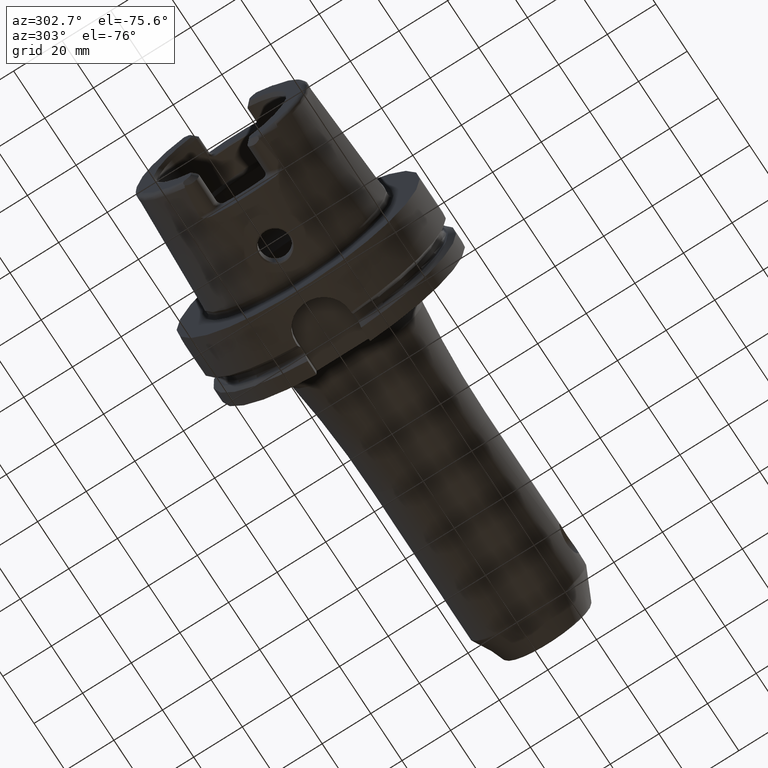
[diagram: clean part render]
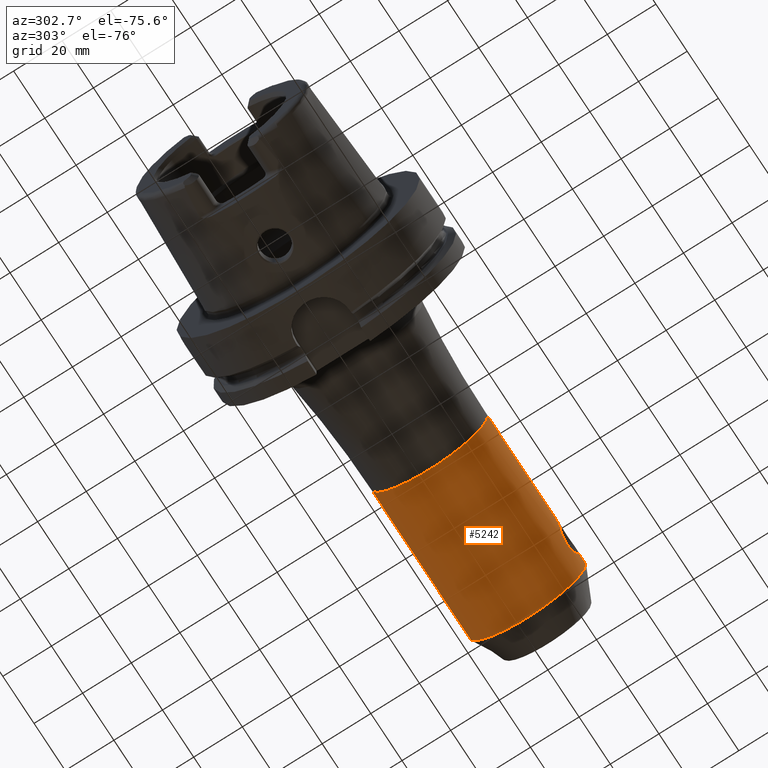
[diagram: same view with one face highlighted and labeled with its STEP entity id]
A machine part, auxiliary view. The second image highlights one B-rep face of the part: STEP entity #5242.
In plain terms, the highlighted cylindrical surface (partial cylindrical patch) has radius 24 mm, axis along (1, 0, 0).
Its self-contained STEP definition (entity closure, byte-faithful):
#1840=CARTESIAN_POINT('',(8.4E1,0.E0,0.E0));
#1841=DIRECTION('',(1.E0,0.E0,0.E0));
#1842=DIRECTION('',(0.E0,-1.E0,0.E0));
#1843=AXIS2_PLACEMENT_3D('',#1840,#1841,#1842);
#1845=DIRECTION('',(-1.E0,0.E0,0.E0));
#1846=VECTOR('',#1845,4.6E1);
#1847=CARTESIAN_POINT('',(1.3E2,-2.4E1,0.E0));
#1848=LINE('',#1847,#1846);
#1849=CARTESIAN_POINT('',(1.42E2,-2.4E1,0.E0));
#1850=CARTESIAN_POINT('',(1.42E2,-2.4E1,-2.303056243480E-1));
#1851=CARTESIAN_POINT('',(1.419737333225E2,-2.399341197275E1,
-6.885303496666E-1));
#1852=CARTESIAN_POINT('',(1.418543459309E2,-2.396384506036E1,
-1.373831486598E0));
#1853=CARTESIAN_POINT('',(1.416570809295E2,-2.391621111192E1,
-2.039513977123E0));
#1854=CARTESIAN_POINT('',(1.413811460476E2,-2.385217337454E1,
-2.684576351589E0));
#1855=CARTESIAN_POINT('',(1.410323527447E2,-2.377555991391E1,
-3.292558739499E0));
#1856=CARTESIAN_POINT('',(1.406100644971E2,-2.368938052900E1,
-3.861886158386E0));
#1857=CARTESIAN_POINT('',(1.401258138418E2,-2.359950761444E1,
-4.375410053870E0));
#1858=CARTESIAN_POINT('',(1.395821202024E2,-2.351013404880E1,
-4.830656948121E0));
#1859=CARTESIAN_POINT('',(1.389924074437E2,-2.342717786415E1,
-5.216300625066E0));
#1860=CARTESIAN_POINT('',(1.383644604091E2,-2.335494506242E1,
-5.529281150146E0));
#1861=CARTESIAN_POINT('',(1.377069920244E2,-2.329735135212E1,
-5.766008671442E0));
#1862=CARTESIAN_POINT('',(1.370331145889E2,-2.325751550948E1,
-5.923901149227E0));
#1863=CARTESIAN_POINT('',(1.363440824489E2,-2.323703795141E1,
-6.003354259553E0));
#1864=CARTESIAN_POINT('',(1.356561575745E2,-2.323703314441E1,
-6.003373076749E0));
#1865=CARTESIAN_POINT('',(1.349670370072E2,-2.325750991375E1,
-5.923922358467E0));
#1866=CARTESIAN_POINT('',(1.342933363411E2,-2.329732649756E1,
-5.766109826059E0));
#1867=CARTESIAN_POINT('',(1.336356276209E2,-2.335493648729E1,
-5.529315378564E0));
#1868=CARTESIAN_POINT('',(1.330079593077E2,-2.342713123226E1,
-5.216510459812E0));
#1869=CARTESIAN_POINT('',(1.324179620641E2,-2.351012048578E1,
-4.830722766926E0));
#1870=CARTESIAN_POINT('',(1.318744301014E2,-2.359946562799E1,
-4.375633971113E0));
#1871=CARTESIAN_POINT('',(1.313900432229E2,-2.368935872718E1,
-3.862023680271E0));
#1872=CARTESIAN_POINT('',(1.309677716190E2,-2.377553392864E1,
-3.292738878680E0));
#1873=CARTESIAN_POINT('',(1.306189745269E2,-2.385214587017E1,
-2.684826934537E0));
#1874=CARTESIAN_POINT('',(1.303429565987E2,-2.391620209941E1,
-2.039622758028E0));
#1875=CARTESIAN_POINT('',(1.301456929767E2,-2.396383554564E1,
-1.374003937601E0));
#1876=CARTESIAN_POINT('',(1.300262613051E2,-2.399341326410E1,
-6.885320746175E-1));
#1877=CARTESIAN_POINT('',(1.3E2,-2.4E1,-2.303027123874E-1));
#1878=CARTESIAN_POINT('',(1.3E2,-2.4E1,0.E0));
#1880=DIRECTION('',(-1.E0,0.E0,-1.931051011396E-14));
#1881=VECTOR('',#1880,4.911263814300E0);
#1882=CARTESIAN_POINT('',(1.469112638143E2,-2.4E1,9.228255405104E-14));
#1883=LINE('',#1882,#1881);
#1884=CARTESIAN_POINT('',(1.469112638143E2,0.E0,0.E0));
#1885=DIRECTION('',(-1.E0,0.E0,0.E0));
#1886=DIRECTION('',(0.E0,1.E0,0.E0));
#1887=AXIS2_PLACEMENT_3D('',#1884,#1885,#1886);
#1889=DIRECTION('',(-1.E0,0.E0,0.E0));
#1890=VECTOR('',#1889,6.291126381430E1);
#1891=CARTESIAN_POINT('',(1.469112638143E2,2.4E1,-9.834641264873E-14));
#1892=LINE('',#1891,#1890);
#1903=CARTESIAN_POINT('',(1.3E2,-2.4E1,0.E0));
#1932=CARTESIAN_POINT('',(1.42E2,-2.4E1,0.E0));
#3317=CARTESIAN_POINT('',(1.469112638143E2,2.4E1,0.E0));
#3318=CARTESIAN_POINT('',(1.469112638143E2,-2.4E1,0.E0));
#3319=VERTEX_POINT('',#3317);
#3320=VERTEX_POINT('',#3318);
#3335=VERTEX_POINT('',#1903);
#3336=VERTEX_POINT('',#1932);
#3339=CARTESIAN_POINT('',(8.4E1,2.4E1,0.E0));
#3340=CARTESIAN_POINT('',(8.4E1,-2.4E1,0.E0));
#3341=VERTEX_POINT('',#3339);
#3342=VERTEX_POINT('',#3340);
#5224=CARTESIAN_POINT('',(2.245E1,0.E0,0.E0));
#5225=DIRECTION('',(1.E0,0.E0,0.E0));
#5226=DIRECTION('',(0.E0,-1.E0,0.E0));
#5227=AXIS2_PLACEMENT_3D('',#5224,#5225,#5226);
#5228=CYLINDRICAL_SURFACE('',#5227,2.4E1);
#5229=ORIENTED_EDGE('',*,*,#5206,.F.);
#5231=ORIENTED_EDGE('',*,*,#5230,.F.);
#5233=ORIENTED_EDGE('',*,*,#5232,.F.);
#5235=ORIENTED_EDGE('',*,*,#5234,.F.);
#5237=ORIENTED_EDGE('',*,*,#5236,.F.);
#5239=ORIENTED_EDGE('',*,*,#5238,.T.);
#5240=EDGE_LOOP('',(#5229,#5231,#5233,#5235,#5237,#5239));
#5241=FACE_OUTER_BOUND('',#5240,.F.);
#5242=ADVANCED_FACE('',(#5241),#5228,.T.);
#1844=CIRCLE('',#1843,2.4E1);
#1879=B_SPLINE_CURVE_WITH_KNOTS('',3,(#1849,#1850,#1851,#1852,#1853,#1854,#1855,
#1856,#1857,#1858,#1859,#1860,#1861,#1862,#1863,#1864,#1865,#1866,#1867,#1868,
#1869,#1870,#1871,#1872,#1873,#1874,#1875,#1876,#1877,#1878),.UNSPECIFIED.,.F.,
.F.,(4,1,1,1,1,1,1,1,1,1,1,1,1,1,1,1,1,1,1,1,1,1,1,1,1,1,1,4),(0.E0,
3.703703703704E-2,7.407407407407E-2,1.111111111111E-1,1.481481481481E-1,
1.851851851852E-1,2.222222222222E-1,2.592592592593E-1,2.962962962963E-1,
3.333333333333E-1,3.703703703704E-1,4.074074074074E-1,4.444444444444E-1,
4.814814814815E-1,5.185185185185E-1,5.555555555556E-1,5.925925925926E-1,
6.296296296296E-1,6.666666666667E-1,7.037037037037E-1,7.407407407407E-1,
7.777777777778E-1,8.148148148148E-1,8.518518518519E-1,8.888888888889E-1,
9.259259259259E-1,9.629629629630E-1,1.E0),.UNSPECIFIED.);
#1888=CIRCLE('',#1887,2.4E1);
#5206=EDGE_CURVE('',#3342,#3341,#1844,.T.);
#5230=EDGE_CURVE('',#3335,#3342,#1848,.T.);
#5232=EDGE_CURVE('',#3336,#3335,#1879,.T.);
#5234=EDGE_CURVE('',#3320,#3336,#1883,.T.);
#5236=EDGE_CURVE('',#3319,#3320,#1888,.T.);
#5238=EDGE_CURVE('',#3319,#3341,#1892,.T.);